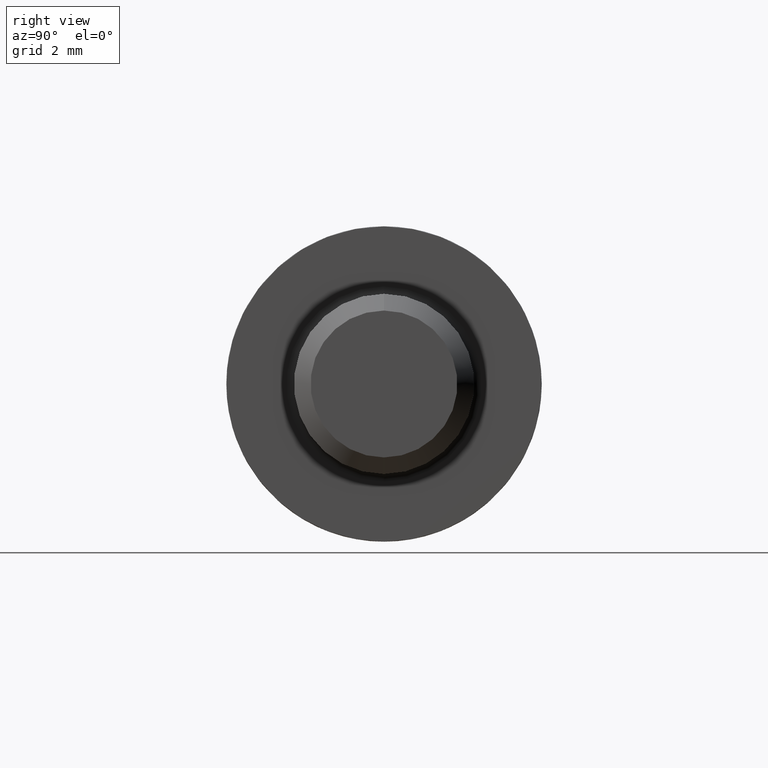
[diagram: clean part render]
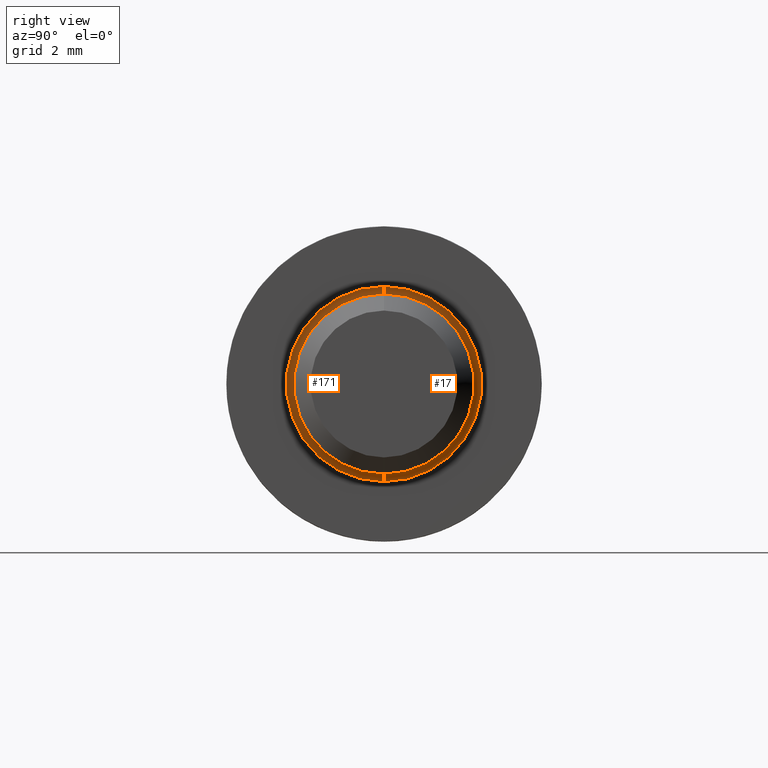
[diagram: same view with one multi-face feature highlighted, each face labeled with its STEP entity id]
A machine part, right view. The highlighted faces form ONE feature: a constant-radius fillet chain: 2 tangent blend faces with common blend radius 0.25 mm. The faces share edges in the B-rep.
Their STEP definitions:
[1] entity #17 (Torus):
#17 = ADVANCED_FACE ( 'NONE', ( #271 ), #429, .F. ) ;
#24 = EDGE_CURVE ( 'NONE', #571, #531, #747, .T. ) ;
#61 = DIRECTION ( 'NONE',  ( 0.000000000000000000, -1.000000000000000000, 0.000000000000000000 ) ) ;
#66 = CARTESIAN_POINT ( 'NONE',  ( 3.550000000000000266, 0.000000000000000000, 2.999999999999992895 ) ) ;
#80 = ORIENTED_EDGE ( 'NONE', *, *, #85, .T. ) ;
#83 = EDGE_CURVE ( 'NONE', #531, #268, #154, .T. ) ;
#85 = EDGE_CURVE ( 'NONE', #125, #268, #453, .T. ) ;
#105 = DIRECTION ( 'NONE',  ( 0.000000000000000000, 0.000000000000000000, -1.000000000000000000 ) ) ;
#125 = VERTEX_POINT ( 'NONE', #180 ) ;
#149 = CARTESIAN_POINT ( 'NONE',  ( 3.550000000000000266, 3.980102097228888864E-16, -3.249999999999992450 ) ) ;
#154 = CIRCLE ( 'NONE', #700, 2.999999999999992895 ) ;
#158 = CARTESIAN_POINT ( 'NONE',  ( 3.550000000000000266, 0.000000000000000000, 0.000000000000000000 ) ) ;
#180 = CARTESIAN_POINT ( 'NONE',  ( 3.299999999999999822, 0.000000000000000000, 3.249999999999992450 ) ) ;
#194 = EDGE_LOOP ( 'NONE', ( #559, #408, #80, #284 ) ) ;
#205 = CIRCLE ( 'NONE', #411, 3.249999999999992450 ) ;
#268 = VERTEX_POINT ( 'NONE', #66 ) ;
#271 = FACE_OUTER_BOUND ( 'NONE', #194, .T. ) ;
#284 = ORIENTED_EDGE ( 'NONE', *, *, #83, .F. ) ;
#317 = AXIS2_PLACEMENT_3D ( 'NONE', #351, #61, #105 ) ;
#322 = CARTESIAN_POINT ( 'NONE',  ( 3.550000000000000266, 0.000000000000000000, 0.000000000000000000 ) ) ;
#347 = AXIS2_PLACEMENT_3D ( 'NONE', #149, #390, #623 ) ;
#351 = CARTESIAN_POINT ( 'NONE',  ( 3.550000000000000266, 0.000000000000000000, 3.249999999999992450 ) ) ;
#390 = DIRECTION ( 'NONE',  ( -0.000000000000000000, 1.000000000000000000, 1.224646799147353207E-16 ) ) ;
#408 = ORIENTED_EDGE ( 'NONE', *, *, #475, .F. ) ;
#411 = AXIS2_PLACEMENT_3D ( 'NONE', #527, #483, #591 ) ;
#429 = TOROIDAL_SURFACE ( 'NONE', #576, 3.249999999999992450, 0.2500000000000000000 ) ;
#453 = CIRCLE ( 'NONE', #317, 0.2500000000000002220 ) ;
#461 = DIRECTION ( 'NONE',  ( 0.000000000000000000, 0.000000000000000000, 1.000000000000000000 ) ) ;
#475 = EDGE_CURVE ( 'NONE', #125, #571, #205, .T. ) ;
#483 = DIRECTION ( 'NONE',  ( -1.000000000000000000, -0.000000000000000000, -0.000000000000000000 ) ) ;
#527 = CARTESIAN_POINT ( 'NONE',  ( 3.299999999999999822, 0.000000000000000000, 0.000000000000000000 ) ) ;
#531 = VERTEX_POINT ( 'NONE', #541 ) ;
#535 = CARTESIAN_POINT ( 'NONE',  ( 3.299999999999999822, 3.980102097228888864E-16, -3.249999999999992450 ) ) ;
#541 = CARTESIAN_POINT ( 'NONE',  ( 3.550000000000000266, 3.673940397442050500E-16, -2.999999999999992895 ) ) ;
#556 = DIRECTION ( 'NONE',  ( 1.000000000000000000, 0.000000000000000000, 0.000000000000000000 ) ) ;
#559 = ORIENTED_EDGE ( 'NONE', *, *, #24, .F. ) ;
#571 = VERTEX_POINT ( 'NONE', #535 ) ;
#576 = AXIS2_PLACEMENT_3D ( 'NONE', #158, #733, #744 ) ;
#591 = DIRECTION ( 'NONE',  ( 0.000000000000000000, 0.000000000000000000, 1.000000000000000000 ) ) ;
#623 = DIRECTION ( 'NONE',  ( 0.000000000000000000, -1.224646799147351482E-16, 1.000000000000000000 ) ) ;
#700 = AXIS2_PLACEMENT_3D ( 'NONE', #322, #556, #461 ) ;
#733 = DIRECTION ( 'NONE',  ( -1.000000000000000000, -0.000000000000000000, -0.000000000000000000 ) ) ;
#744 = DIRECTION ( 'NONE',  ( 0.000000000000000000, 0.000000000000000000, 1.000000000000000000 ) ) ;
#747 = CIRCLE ( 'NONE', #347, 0.2500000000000002220 ) ;
[2] entity #171 (Torus):
#24 = EDGE_CURVE ( 'NONE', #571, #531, #747, .T. ) ;
#34 = FACE_OUTER_BOUND ( 'NONE', #485, .T. ) ;
#61 = DIRECTION ( 'NONE',  ( 0.000000000000000000, -1.000000000000000000, 0.000000000000000000 ) ) ;
#66 = CARTESIAN_POINT ( 'NONE',  ( 3.550000000000000266, 0.000000000000000000, 2.999999999999992895 ) ) ;
#73 = CIRCLE ( 'NONE', #442, 2.999999999999992895 ) ;
#85 = EDGE_CURVE ( 'NONE', #125, #268, #453, .T. ) ;
#105 = DIRECTION ( 'NONE',  ( 0.000000000000000000, 0.000000000000000000, -1.000000000000000000 ) ) ;
#125 = VERTEX_POINT ( 'NONE', #180 ) ;
#149 = CARTESIAN_POINT ( 'NONE',  ( 3.550000000000000266, 3.980102097228888864E-16, -3.249999999999992450 ) ) ;
#168 = CARTESIAN_POINT ( 'NONE',  ( 3.550000000000000266, 0.000000000000000000, 0.000000000000000000 ) ) ;
#171 = ADVANCED_FACE ( 'NONE', ( #34 ), #331, .F. ) ;
#180 = CARTESIAN_POINT ( 'NONE',  ( 3.299999999999999822, 0.000000000000000000, 3.249999999999992450 ) ) ;
#198 = ORIENTED_EDGE ( 'NONE', *, *, #757, .F. ) ;
#259 = CARTESIAN_POINT ( 'NONE',  ( 3.550000000000000266, 0.000000000000000000, 0.000000000000000000 ) ) ;
#268 = VERTEX_POINT ( 'NONE', #66 ) ;
#282 = AXIS2_PLACEMENT_3D ( 'NONE', #437, #621, #607 ) ;
#300 = EDGE_CURVE ( 'NONE', #268, #531, #73, .T. ) ;
#317 = AXIS2_PLACEMENT_3D ( 'NONE', #351, #61, #105 ) ;
#331 = TOROIDAL_SURFACE ( 'NONE', #759, 3.249999999999992450, 0.2500000000000000000 ) ;
#342 = ORIENTED_EDGE ( 'NONE', *, *, #24, .T. ) ;
#347 = AXIS2_PLACEMENT_3D ( 'NONE', #149, #390, #623 ) ;
#351 = CARTESIAN_POINT ( 'NONE',  ( 3.550000000000000266, 0.000000000000000000, 3.249999999999992450 ) ) ;
#361 = CIRCLE ( 'NONE', #282, 3.249999999999992450 ) ;
#390 = DIRECTION ( 'NONE',  ( -0.000000000000000000, 1.000000000000000000, 1.224646799147353207E-16 ) ) ;
#407 = DIRECTION ( 'NONE',  ( -1.000000000000000000, -0.000000000000000000, -0.000000000000000000 ) ) ;
#412 = DIRECTION ( 'NONE',  ( 0.000000000000000000, 0.000000000000000000, 1.000000000000000000 ) ) ;
#437 = CARTESIAN_POINT ( 'NONE',  ( 3.299999999999999822, 0.000000000000000000, 0.000000000000000000 ) ) ;
#442 = AXIS2_PLACEMENT_3D ( 'NONE', #259, #498, #732 ) ;
#450 = ORIENTED_EDGE ( 'NONE', *, *, #300, .F. ) ;
#453 = CIRCLE ( 'NONE', #317, 0.2500000000000002220 ) ;
#485 = EDGE_LOOP ( 'NONE', ( #198, #342, #450, #596 ) ) ;
#498 = DIRECTION ( 'NONE',  ( 1.000000000000000000, 0.000000000000000000, 0.000000000000000000 ) ) ;
#531 = VERTEX_POINT ( 'NONE', #541 ) ;
#535 = CARTESIAN_POINT ( 'NONE',  ( 3.299999999999999822, 3.980102097228888864E-16, -3.249999999999992450 ) ) ;
#541 = CARTESIAN_POINT ( 'NONE',  ( 3.550000000000000266, 3.673940397442050500E-16, -2.999999999999992895 ) ) ;
#571 = VERTEX_POINT ( 'NONE', #535 ) ;
#596 = ORIENTED_EDGE ( 'NONE', *, *, #85, .F. ) ;
#607 = DIRECTION ( 'NONE',  ( 0.000000000000000000, 0.000000000000000000, 1.000000000000000000 ) ) ;
#621 = DIRECTION ( 'NONE',  ( -1.000000000000000000, -0.000000000000000000, -0.000000000000000000 ) ) ;
#623 = DIRECTION ( 'NONE',  ( 0.000000000000000000, -1.224646799147351482E-16, 1.000000000000000000 ) ) ;
#732 = DIRECTION ( 'NONE',  ( 0.000000000000000000, 0.000000000000000000, 1.000000000000000000 ) ) ;
#747 = CIRCLE ( 'NONE', #347, 0.2500000000000002220 ) ;
#757 = EDGE_CURVE ( 'NONE', #571, #125, #361, .T. ) ;
#759 = AXIS2_PLACEMENT_3D ( 'NONE', #168, #407, #412 ) ;